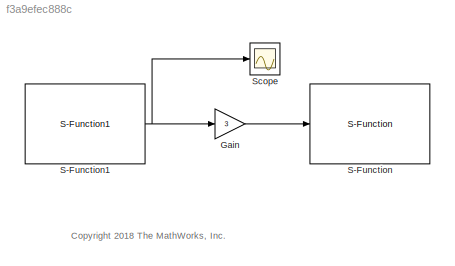
MODEL slx_f3a9efec888c
KIND model
CONFIG AbsTol = auto
CONFIG EnableMultiTasking = off
CONFIG FixedStep = auto
CONFIG MaxStep = auto
CONFIG MinStep = auto
CONFIG RelTol = 1e-3
CONFIG SampleTimeConstraint = Unconstrained
CONFIG Solver = VariableStepAuto
CONFIG SolverName = VariableStepAuto
CONFIG StartTime = 0.0
CONFIG StopTime = 30
BLOCK [Gain] Gain
  Gain = 3
  OutDataTypeStr = Inherit: Inherit via internal rule
  ParamDataTypeStr = Inherit: Inherit via internal rule
  SaturateOnIntegerOverflow = off
BLOCK [Reference] S-Function  REF=transmit_lib/S-Function
  AttributesFormatString = %<hostname>\n%<portnumber>
  Ports = [1]
  SourceBlock = transmit_lib/S-Function
  SourceProductName = The database <userpath>\AppData\Roaming\MathWorks\MATLAB\R2018a\slblocks_master.db is locked, or a table in the database is locked. (database is locked)
BLOCK [Reference] S-Function1  REF=transmit_lib/S-Function1
  AttributesFormatString = %<hostname>\n%<portnumber>
  Ports = [0, 1]
  SourceBlock = transmit_lib/S-Function1
  SourceProductName = The database <userpath>\AppData\Roaming\MathWorks\MATLAB\R2018a\slblocks_master.db is locked, or a table in the database is locked. (database is locked)
BLOCK [Scope] Scope
  Floating = off
  NumInputPorts = 1
  Ports = [1]
  ScopeSpecificationString = Simulink.scopes.TimeScopeBlockCfg('CurrentConfiguration', extmgr.ConfigurationSet(extmgr.Configuration('Core','General UI',true),extmgr.Configuration('Core','Source UI',true),extmgr.Configuration('Sources','WiredSimulink',true),extmgr.Configuration('Visuals','Time Domain',true,'SerializedDisplays',{struct('MinYLimReal','-1.15386','MaxYLimReal','1.15386','YLabelReal','','MinYLimMag','0.00000','MaxY...<+1375ch>
ANNOTATION (root): <copyright redacted>
LINE Gain:1 -> S-Function:1
NET S-Function1:1 -> Gain:1, Scope:1
note: NET lines group one-source signal fan-out (src -> all destinations, sorted); 1:1 wires keep LINE
